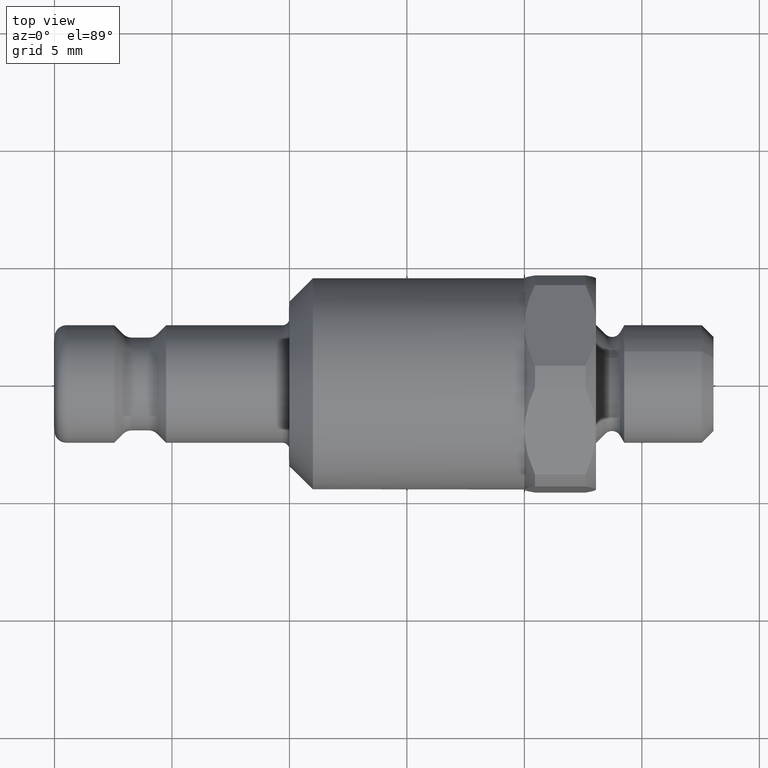
[diagram: clean part render]
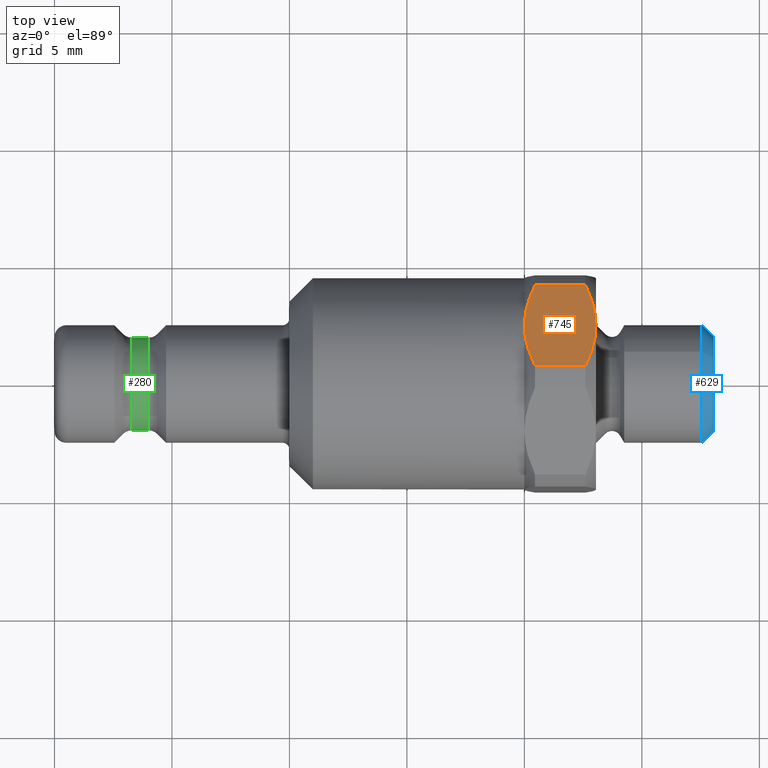
[diagram: same view with three faces highlighted in distinct colors, each labeled with its STEP entity id]
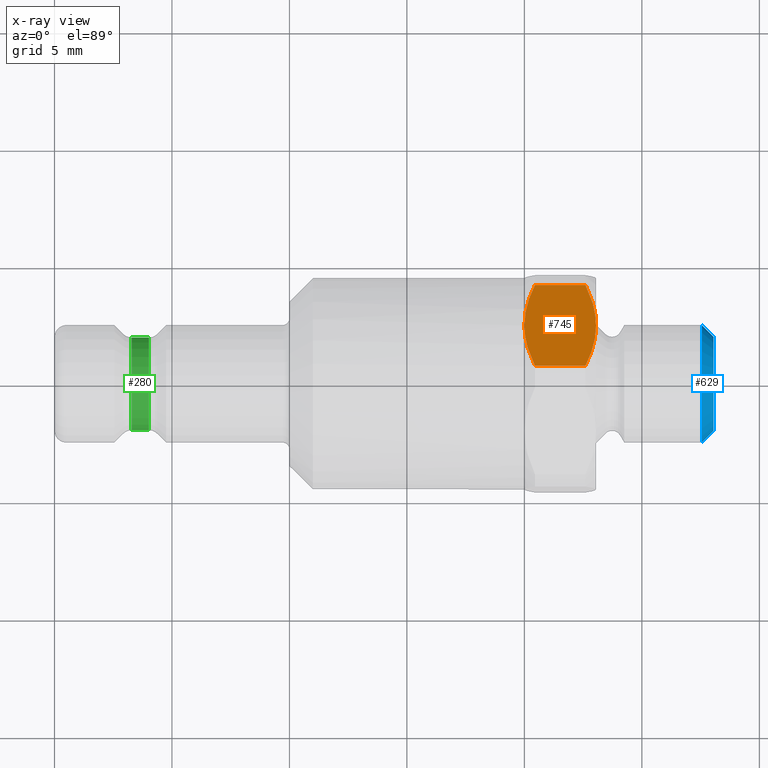
[diagram: x-ray of the same camera — body ghosted, the three highlighted faces saturated]
A machine part, top view with three faces highlighted in distinct colors.
The next image is the same camera in x-ray (body ghosted, the three faces saturated) — at least one of them is partly hidden behind the body in this view.
Their STEP definitions:

[orange] entity #745 — the highlighted planar face has unit normal (-0, -0.5394, -0.842).
#75=CARTESIAN_POINT('',(20.0,2.427420844504965,3.789146083705774));
#76=VERTEX_POINT('',#75);
#463=CARTESIAN_POINT('',(23.050000000000001,2.427420844504966,3.789146083705774));
#464=VERTEX_POINT('',#463);
#666=CARTESIAN_POINT('',(19.031643322095782,2.427420844504965,3.789146083705774));
#667=DIRECTION('',(-7.637047E-017,-0.539426854334437,-0.842032463045727));
#668=DIRECTION('',(-1.0,0.0,0.0));
#669=AXIS2_PLACEMENT_3D('',#666,#667,#668);
#670=PLANE('',#669);
#671=CARTESIAN_POINT('',(22.600000000000001,4.163825719287686,2.676762107360009));
#672=VERTEX_POINT('',#671);
#673=CARTESIAN_POINT('',(22.600000000000001,4.163825719287686,2.676762107360009));
#674=CARTESIAN_POINT('',(23.050000000000001,3.254280308687215,3.259439428303027));
#675=CARTESIAN_POINT('',(23.050000000000001,2.427420844504965,3.789146083705774));
#683=(BOUNDED_CURVE()B_SPLINE_CURVE(2,(#673,#674,#675),.UNSPECIFIED.,.F.,.U.)B_SPLINE_CURVE_WITH_KNOTS((3,3),(0.0,0.212132062836384),.UNSPECIFIED.)CURVE()GEOMETRIC_REPRESENTATION_ITEM()RATIONAL_B_SPLINE_CURVE((1.0,1.024695076595967,1.0))REPRESENTATION_ITEM(''));
#684=EDGE_CURVE('',#672,#464,#683,.T.);
#685=ORIENTED_EDGE('',*,*,#684,.F.);
#686=CARTESIAN_POINT('',(20.450000000000003,4.163825719287686,2.676762107360008));
#687=VERTEX_POINT('',#686);
#688=CARTESIAN_POINT('',(20.450000000000003,4.163825719287686,2.676762107360008));
#689=DIRECTION('',(1.0,0.0,0.0));
#690=VECTOR('',#689,2.149999999999999);
#691=LINE('',#688,#690);
#692=EDGE_CURVE('',#687,#672,#691,.T.);
#693=ORIENTED_EDGE('',*,*,#692,.F.);
#694=CARTESIAN_POINT('',(20.0,2.427420844504965,3.789146083705774));
#695=CARTESIAN_POINT('',(20.0,3.254280308687205,3.259439428303033));
#696=CARTESIAN_POINT('',(20.450000000000003,4.163825719287683,2.676762107360011));
#704=(BOUNDED_CURVE()B_SPLINE_CURVE(2,(#694,#695,#696),.UNSPECIFIED.,.F.,.U.)B_SPLINE_CURVE_WITH_KNOTS((3,3),(0.212132062836384,0.424264125672768),.UNSPECIFIED.)CURVE()GEOMETRIC_REPRESENTATION_ITEM()RATIONAL_B_SPLINE_CURVE((1.0,1.024695076595967,1.0))REPRESENTATION_ITEM(''));
#705=EDGE_CURVE('',#76,#687,#704,.T.);
#706=ORIENTED_EDGE('',*,*,#705,.F.);
#707=CARTESIAN_POINT('',(20.450000000000003,0.691015969722244,4.901530060051539));
#708=VERTEX_POINT('',#707);
#709=CARTESIAN_POINT('',(20.450000000000003,0.691015969722248,4.901530060051536));
#710=CARTESIAN_POINT('',(20.0,1.600561380322725,4.318852739108514));
#711=CARTESIAN_POINT('',(20.0,2.427420844504965,3.789146083705774));
#719=(BOUNDED_CURVE()B_SPLINE_CURVE(2,(#709,#710,#711),.UNSPECIFIED.,.F.,.U.)B_SPLINE_CURVE_WITH_KNOTS((3,3),(0.0,0.212132062836384),.UNSPECIFIED.)CURVE()GEOMETRIC_REPRESENTATION_ITEM()RATIONAL_B_SPLINE_CURVE((1.0,1.024695076595967,1.0))REPRESENTATION_ITEM(''));
#720=EDGE_CURVE('',#708,#76,#719,.T.);
#721=ORIENTED_EDGE('',*,*,#720,.F.);
#722=CARTESIAN_POINT('',(22.600000000000001,0.691015969722245,4.901530060051538));
#723=VERTEX_POINT('',#722);
#724=CARTESIAN_POINT('',(22.600000000000001,0.691015969722244,4.901530060051539));
#725=DIRECTION('',(-1.0,0.0,0.0));
#726=VECTOR('',#725,2.149999999999999);
#727=LINE('',#724,#726);
#728=EDGE_CURVE('',#723,#708,#727,.T.);
#729=ORIENTED_EDGE('',*,*,#728,.F.);
#730=CARTESIAN_POINT('',(23.050000000000001,2.427420844504965,3.789146083705774));
#731=CARTESIAN_POINT('',(23.050000000000001,1.600561380322716,4.31885273910852));
#732=CARTESIAN_POINT('',(22.600000000000001,0.691015969722245,4.901530060051538));
#740=(BOUNDED_CURVE()B_SPLINE_CURVE(2,(#730,#731,#732),.UNSPECIFIED.,.F.,.U.)B_SPLINE_CURVE_WITH_KNOTS((3,3),(0.212132062836384,0.424264125672769),.UNSPECIFIED.)CURVE()GEOMETRIC_REPRESENTATION_ITEM()RATIONAL_B_SPLINE_CURVE((1.0,1.024695076595967,1.0))REPRESENTATION_ITEM(''));
#741=EDGE_CURVE('',#464,#723,#740,.T.);
#742=ORIENTED_EDGE('',*,*,#741,.F.);
#743=EDGE_LOOP('',(#685,#693,#706,#721,#729,#742));
#744=FACE_OUTER_BOUND('',#743,.T.);
#745=ADVANCED_FACE('',(#744),#670,.F.);

[blue] entity #629 — the highlighted conical surface has half-angle 45 deg.
#589=CARTESIAN_POINT('',(27.550000000000004,1.348567135836092,2.105081157614319));
#590=VERTEX_POINT('',#589);
#591=CARTESIAN_POINT('',(27.550000000000004,-3.303037E-017,-8.196758E-031));
#592=DIRECTION('',(1.0,1.922244E-017,3.000577E-017));
#593=DIRECTION('',(3.563494E-017,-0.539426854334437,-0.842032463045727));
#594=AXIS2_PLACEMENT_3D('',#591,#592,#593);
#595=CIRCLE('',#594,2.5);
#596=EDGE_CURVE('',#590,#590,#595,.T.);
#606=CARTESIAN_POINT('',(28.050000000000001,1.078853708668874,1.684064926091455));
#607=VERTEX_POINT('',#606);
#608=CARTESIAN_POINT('',(28.050000000000001,-4.960161E-031,-8.628166E-031));
#609=DIRECTION('',(-1.0,-1.922244E-017,-3.000577E-017));
#610=DIRECTION('',(3.563494E-017,-0.539426854334437,-0.842032463045727));
#611=AXIS2_PLACEMENT_3D('',#608,#609,#610);
#612=CIRCLE('',#611,2.0);
#613=EDGE_CURVE('',#607,#607,#612,.T.);
#618=CARTESIAN_POINT('',(27.800000000000004,-1.651518E-017,-8.412462E-031));
#619=DIRECTION('',(-1.0,-6.606074E-017,8.628166E-032));
#620=DIRECTION('',(3.563494E-017,-0.539426854334437,-0.842032463045727));
#621=AXIS2_PLACEMENT_3D('',#618,#619,#620);
#622=CONICAL_SURFACE('',#621,2.25,45.000000000000014);
#623=ORIENTED_EDGE('',*,*,#613,.T.);
#624=EDGE_LOOP('',(#623));
#625=FACE_OUTER_BOUND('',#624,.T.);
#626=ORIENTED_EDGE('',*,*,#596,.T.);
#627=EDGE_LOOP('',(#626));
#628=FACE_BOUND('',#627,.T.);
#629=ADVANCED_FACE('',(#625,#628),#622,.T.);

[green] entity #280 — the highlighted cylindrical surface (bore or boss wall) has radius 1.975 mm, axis along (1, 0, 0).
#249=CARTESIAN_POINT('',(4.017893218813454,1.975,0.0));
#250=VERTEX_POINT('',#249);
#251=CARTESIAN_POINT('',(4.017893218813454,0.0,0.0));
#252=DIRECTION('',(1.0,0.0,0.0));
#253=DIRECTION('',(0.0,1.0,0.0));
#254=AXIS2_PLACEMENT_3D('',#251,#252,#253);
#255=CIRCLE('',#254,1.975);
#256=EDGE_CURVE('',#250,#250,#255,.T.);
#261=CARTESIAN_POINT('',(3.65,0.0,0.0));
#262=DIRECTION('',(1.0,0.0,0.0));
#263=DIRECTION('',(0.0,1.0,0.0));
#264=AXIS2_PLACEMENT_3D('',#261,#262,#263);
#265=CYLINDRICAL_SURFACE('',#264,1.975);
#266=ORIENTED_EDGE('',*,*,#256,.F.);
#267=EDGE_LOOP('',(#266));
#268=FACE_OUTER_BOUND('',#267,.T.);
#269=CARTESIAN_POINT('',(3.282106781186547,1.975,0.0));
#270=VERTEX_POINT('',#269);
#271=CARTESIAN_POINT('',(3.282106781186547,0.0,0.0));
#272=DIRECTION('',(1.0,0.0,0.0));
#273=DIRECTION('',(0.0,1.0,0.0));
#274=AXIS2_PLACEMENT_3D('',#271,#272,#273);
#275=CIRCLE('',#274,1.975);
#276=EDGE_CURVE('',#270,#270,#275,.T.);
#277=ORIENTED_EDGE('',*,*,#276,.T.);
#278=EDGE_LOOP('',(#277));
#279=FACE_BOUND('',#278,.T.);
#280=ADVANCED_FACE('',(#268,#279),#265,.T.);